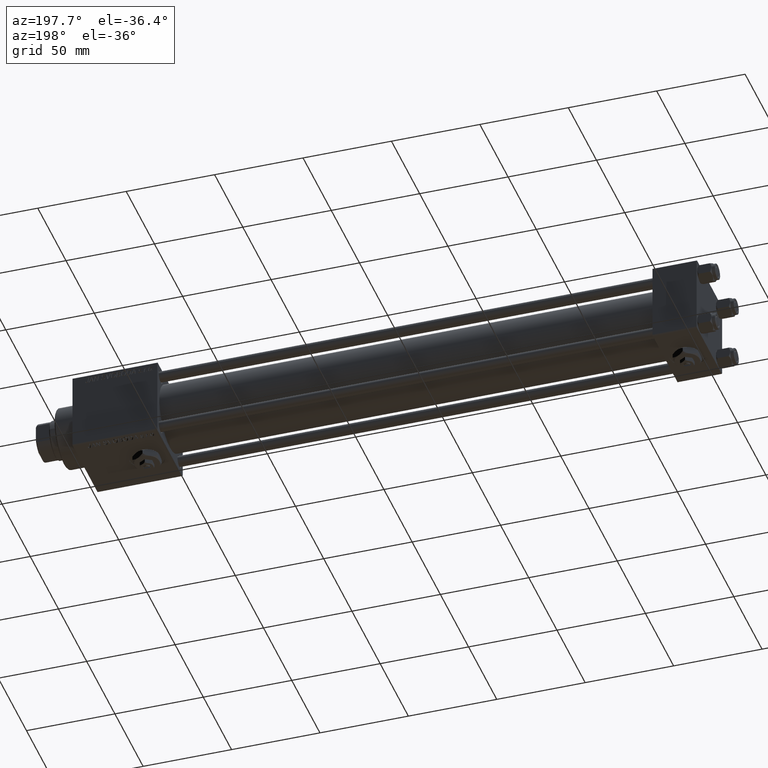
[diagram: clean part render]
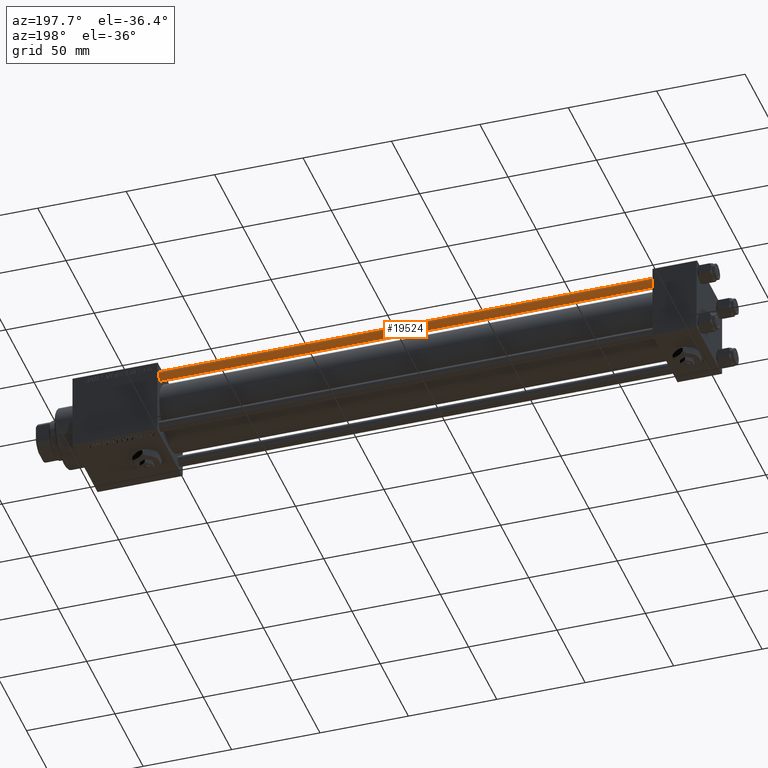
[diagram: same view with one face highlighted and labeled with its STEP entity id]
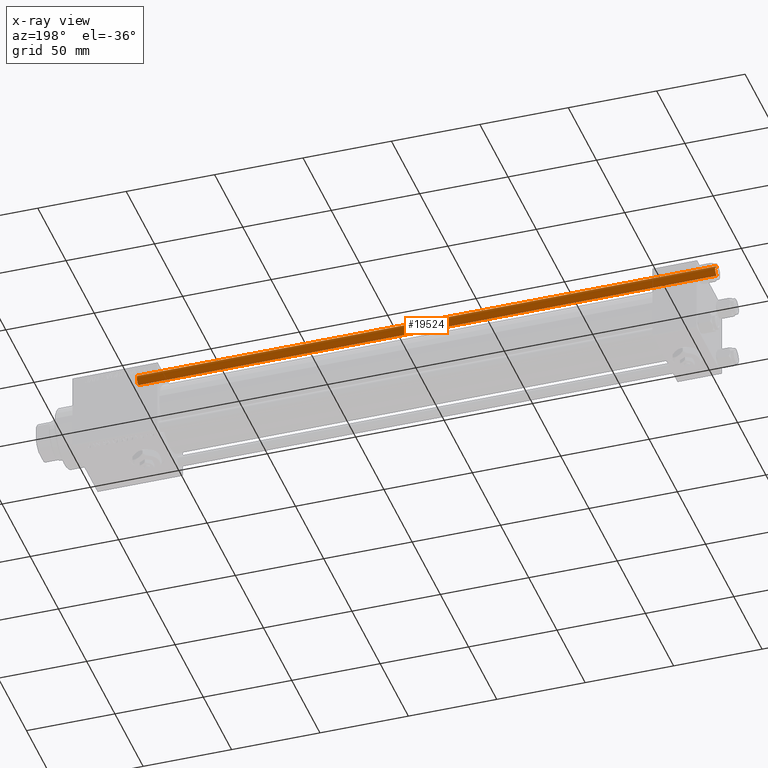
[diagram: x-ray of the same camera — body ghosted, the highlighted face saturated]
A machine part, auxiliary view. The second image highlights one B-rep face of the part: STEP entity #19524.
The next image is the same camera in x-ray: the body ghosted, the highlighted face saturated — about 0% of this face is hidden behind the body in this view.
In plain terms, the highlighted cylindrical surface (edge-blend (fillet) strip) has radius 3 mm, axis along (-1, 0, 0).
Its self-contained STEP definition (entity closure, byte-faithful):
#2266 = VERTEX_POINT ( 'NONE', #37953 ) ;
#3370 = CYLINDRICAL_SURFACE ( 'NONE', #23694, 3.000000000000000444 ) ;
#3641 = DIRECTION ( 'NONE',  ( -0.000000000000000000, -0.000000000000000000, -1.000000000000000000 ) ) ;
#3909 = CARTESIAN_POINT ( 'NONE',  ( 0.000000000000000000, 0.000000000000000000, 327.5000000000000000 ) ) ;
#4681 = CARTESIAN_POINT ( 'NONE',  ( 3.000000000000000444, 3.673940397442060361E-16, 0.5000000000000559552 ) ) ;
#5050 = CARTESIAN_POINT ( 'NONE',  ( 0.000000000000000000, 0.000000000000000000, 0.5000000000000559552 ) ) ;
#6683 = CARTESIAN_POINT ( 'NONE',  ( 3.000000000000000444, 3.673940397442060361E-16, 327.5000000000000000 ) ) ;
#6895 = CARTESIAN_POINT ( 'NONE',  ( 0.000000000000000000, 0.000000000000000000, 328.0000000000000000 ) ) ;
#6971 = DIRECTION ( 'NONE',  ( -0.000000000000000000, -0.000000000000000000, -1.000000000000000000 ) ) ;
#7376 = VERTEX_POINT ( 'NONE', #38764 ) ;
#7680 = DIRECTION ( 'NONE',  ( 0.000000000000000000, 0.000000000000000000, -1.000000000000000000 ) ) ;
#11021 = EDGE_CURVE ( 'NONE', #42078, #2266, #52050, .T. ) ;
#11476 = FACE_OUTER_BOUND ( 'NONE', #39890, .T. ) ;
#11536 = VECTOR ( 'NONE', #6971, 1000.000000000000000 ) ;
#15613 = AXIS2_PLACEMENT_3D ( 'NONE', #5050, #25328, #49972 ) ;
#18293 = EDGE_CURVE ( 'NONE', #40359, #42078, #30307, .T. ) ;
#19524 = ADVANCED_FACE ( 'NONE', ( #11476 ), #3370, .T. ) ;
#23075 = ORIENTED_EDGE ( 'NONE', *, *, #18293, .T. ) ;
#23119 = DIRECTION ( 'NONE',  ( -1.000000000000000000, 0.000000000000000000, 0.000000000000000000 ) ) ;
#23589 = ORIENTED_EDGE ( 'NONE', *, *, #52202, .T. ) ;
#23694 = AXIS2_PLACEMENT_3D ( 'NONE', #6895, #3641, #23119 ) ;
#25328 = DIRECTION ( 'NONE',  ( -0.000000000000000000, -0.000000000000000000, 1.000000000000000000 ) ) ;
#27032 = CARTESIAN_POINT ( 'NONE',  ( 3.000000000000000444, 3.673940397442060361E-16, 328.0000000000000000 ) ) ;
#30307 = LINE ( 'NONE', #27032, #47868 ) ;
#30324 = CIRCLE ( 'NONE', #51079, 3.000000000000000444 ) ;
#31815 = EDGE_CURVE ( 'NONE', #7376, #2266, #35393, .T. ) ;
#35393 = LINE ( 'NONE', #44850, #11536 ) ;
#36954 = ORIENTED_EDGE ( 'NONE', *, *, #11021, .T. ) ;
#37953 = CARTESIAN_POINT ( 'NONE',  ( -3.000000000000000444, 0.000000000000000000, 0.5000000000000559552 ) ) ;
#38764 = CARTESIAN_POINT ( 'NONE',  ( -3.000000000000000444, 0.000000000000000000, 327.5000000000000000 ) ) ;
#39890 = EDGE_LOOP ( 'NONE', ( #23589, #23075, #36954, #53387 ) ) ;
#40359 = VERTEX_POINT ( 'NONE', #6683 ) ;
#41519 = DIRECTION ( 'NONE',  ( 1.000000000000000000, 0.000000000000000000, 0.000000000000000000 ) ) ;
#42078 = VERTEX_POINT ( 'NONE', #4681 ) ;
#43575 = DIRECTION ( 'NONE',  ( -0.000000000000000000, -0.000000000000000000, -1.000000000000000000 ) ) ;
#44850 = CARTESIAN_POINT ( 'NONE',  ( -3.000000000000000444, 0.000000000000000000, 328.0000000000000000 ) ) ;
#47868 = VECTOR ( 'NONE', #43575, 1000.000000000000000 ) ;
#49972 = DIRECTION ( 'NONE',  ( 1.000000000000000000, 0.000000000000000000, 0.000000000000000000 ) ) ;
#51079 = AXIS2_PLACEMENT_3D ( 'NONE', #3909, #7680, #41519 ) ;
#52050 = CIRCLE ( 'NONE', #15613, 3.000000000000000444 ) ;
#52202 = EDGE_CURVE ( 'NONE', #7376, #40359, #30324, .T. ) ;
#53387 = ORIENTED_EDGE ( 'NONE', *, *, #31815, .F. ) ;